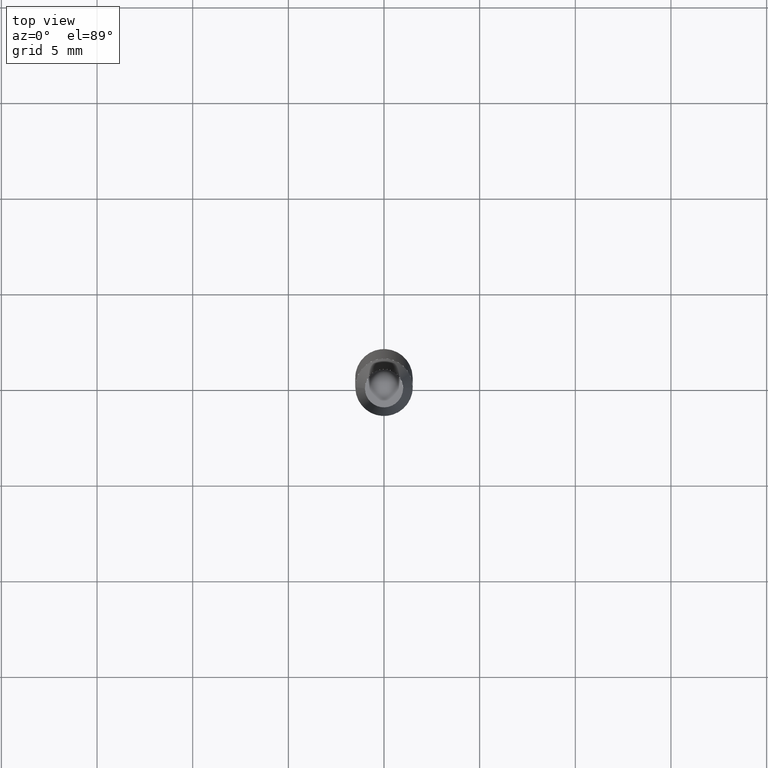
[diagram: clean part render]
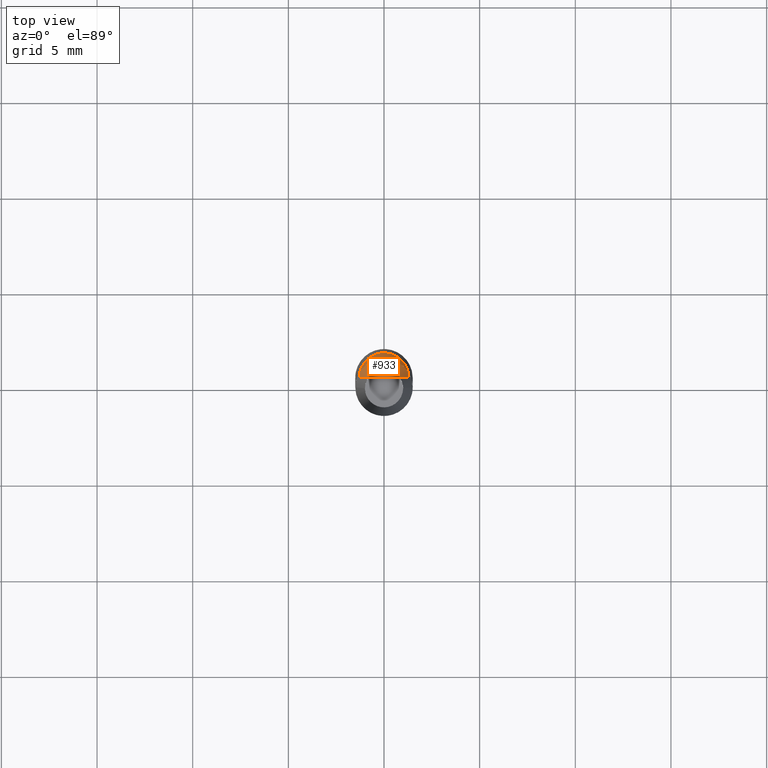
[diagram: same view with one face highlighted and labeled with its STEP entity id]
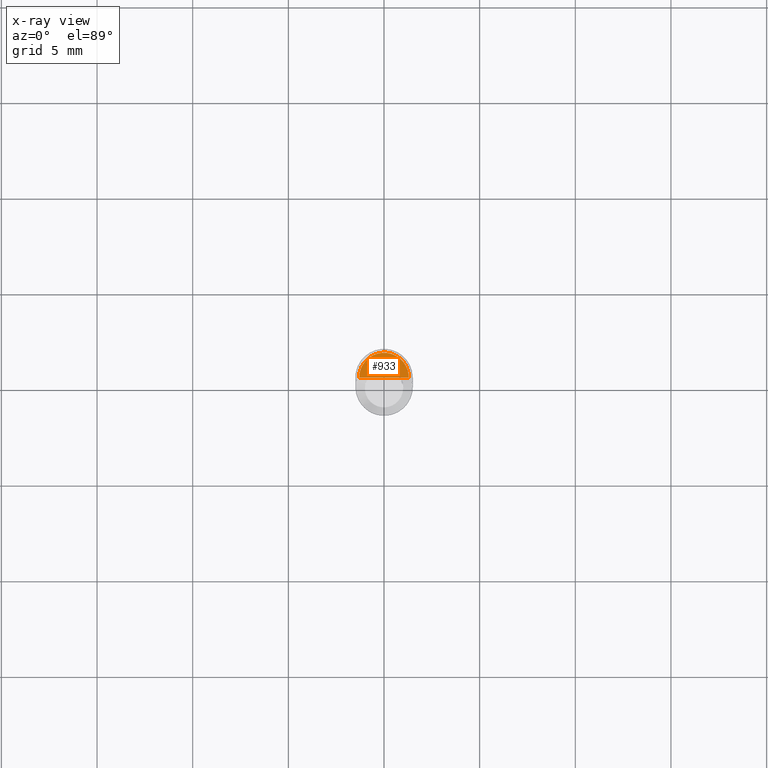
[diagram: x-ray of the same camera — body ghosted, the highlighted face saturated]
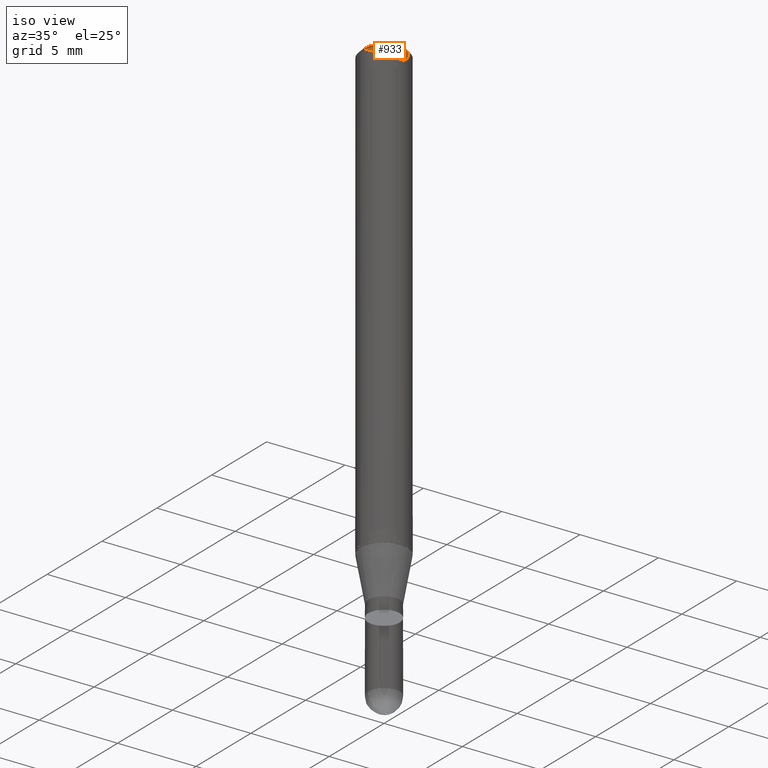
[diagram: same view with one face highlighted and labeled with its STEP entity id]
A machine part, top view. The second image highlights one B-rep face of the part: STEP entity #933.
The next image is the same camera in x-ray: the body ghosted, the highlighted face saturated — about 0% of this face is hidden behind the body in this view.
A second angle (iso view) of the same face is appended — the face is thin or edge-on in the first view.
In plain terms, the highlighted face is a freeform B-spline surface patch.
Its self-contained STEP definition (entity closure, byte-faithful):
#666=CARTESIAN_POINT('',(1.3,0.0,28.7));
#667=CARTESIAN_POINT('',(1.3,1.3,28.7));
#668=CARTESIAN_POINT('',(0.0,1.3,28.7));
#669=CARTESIAN_POINT('',(-1.3,1.3,28.7));
#670=CARTESIAN_POINT('',(-1.3,0.0,28.7));
#671=CARTESIAN_POINT('',(0.0,0.0,28.7));
#918=(
BOUNDED_SURFACE()
B_SPLINE_SURFACE(1,2,(
(#666,#667,#668,#669,#670),
(#671,#671,#671,#671,#671)
), .UNSPECIFIED.,.F.,.F.,.F.)
B_SPLINE_SURFACE_WITH_KNOTS((2,2),(3,2,3),(
0.0,1.0),(
0.0,0.5,1.0), .UNSPECIFIED.)
GEOMETRIC_REPRESENTATION_ITEM()
RATIONAL_B_SPLINE_SURFACE(((1.0,0.707106781187,1.0,0.707106781187,1.0),
(1.0,0.707106781187,1.0,0.707106781187,1.0)
))
REPRESENTATION_ITEM('')
SURFACE()
);
#919=(
BOUNDED_CURVE()
B_SPLINE_CURVE(2,(#670,#669,#668,#667,#666),.UNSPECIFIED.,.F.,.F.)
B_SPLINE_CURVE_WITH_KNOTS((3,2,3),
(0.0,0.5,1.0),.UNSPECIFIED.)
CURVE()
GEOMETRIC_REPRESENTATION_ITEM()
RATIONAL_B_SPLINE_CURVE((1.0,0.707106781187,1.0,0.707106781187,1.0))
REPRESENTATION_ITEM('')
);
#920=(
BOUNDED_CURVE()
B_SPLINE_CURVE(1,(#666,#671),.UNSPECIFIED.,.F.,.F.)
B_SPLINE_CURVE_WITH_KNOTS((2,2),
(0.0,1.0),.UNSPECIFIED.)
CURVE()
GEOMETRIC_REPRESENTATION_ITEM()
RATIONAL_B_SPLINE_CURVE((1.0,1.0))
REPRESENTATION_ITEM('')
);
#921=(
BOUNDED_CURVE()
B_SPLINE_CURVE(1,(#671,#670),.UNSPECIFIED.,.F.,.F.)
B_SPLINE_CURVE_WITH_KNOTS((2,2),
(0.0,1.0),.UNSPECIFIED.)
CURVE()
GEOMETRIC_REPRESENTATION_ITEM()
RATIONAL_B_SPLINE_CURVE((1.0,1.0))
REPRESENTATION_ITEM('')
);
#922=VERTEX_POINT('',#666);
#923=VERTEX_POINT('',#670);
#924=VERTEX_POINT('',#671);
#925=EDGE_CURVE('',#923,#922,#919,.T.);
#926=EDGE_CURVE('',#922,#924,#920,.T.);
#927=EDGE_CURVE('',#924,#923,#921,.T.);
#928=ORIENTED_EDGE('',*,*,#925,.T.);
#929=ORIENTED_EDGE('',*,*,#926,.T.);
#930=ORIENTED_EDGE('',*,*,#927,.T.);
#931=EDGE_LOOP('',(#928,#929,#930));
#932=FACE_OUTER_BOUND('',#931,.T.);
#933=ADVANCED_FACE('',(#932),#918,.T.);